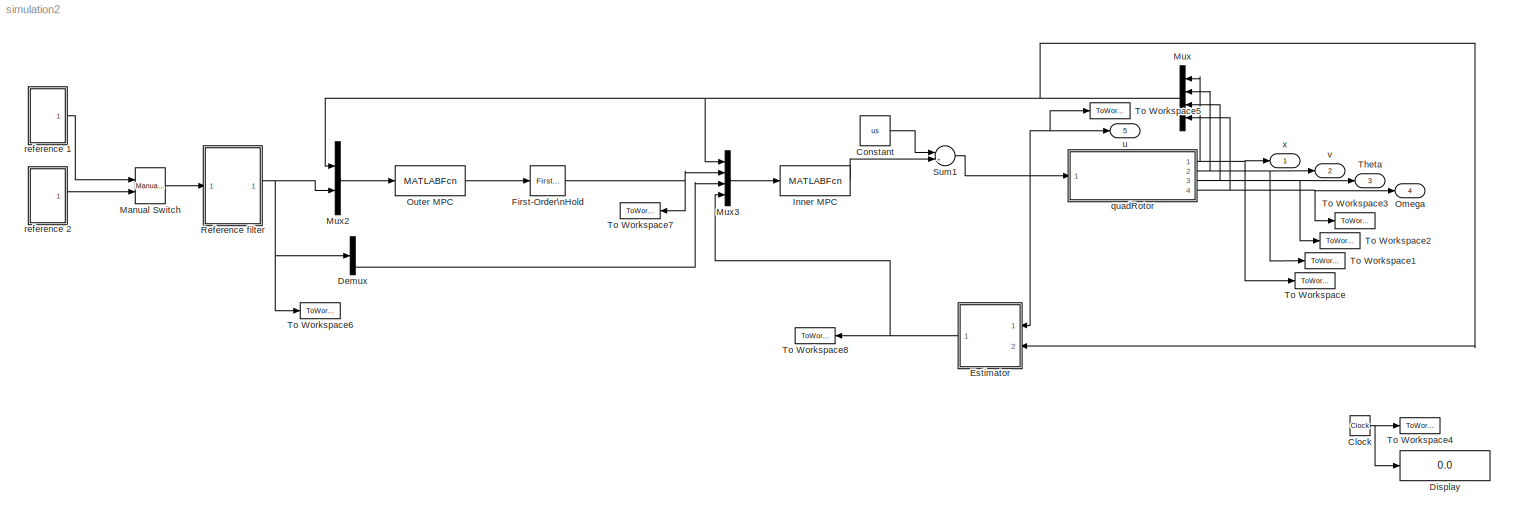
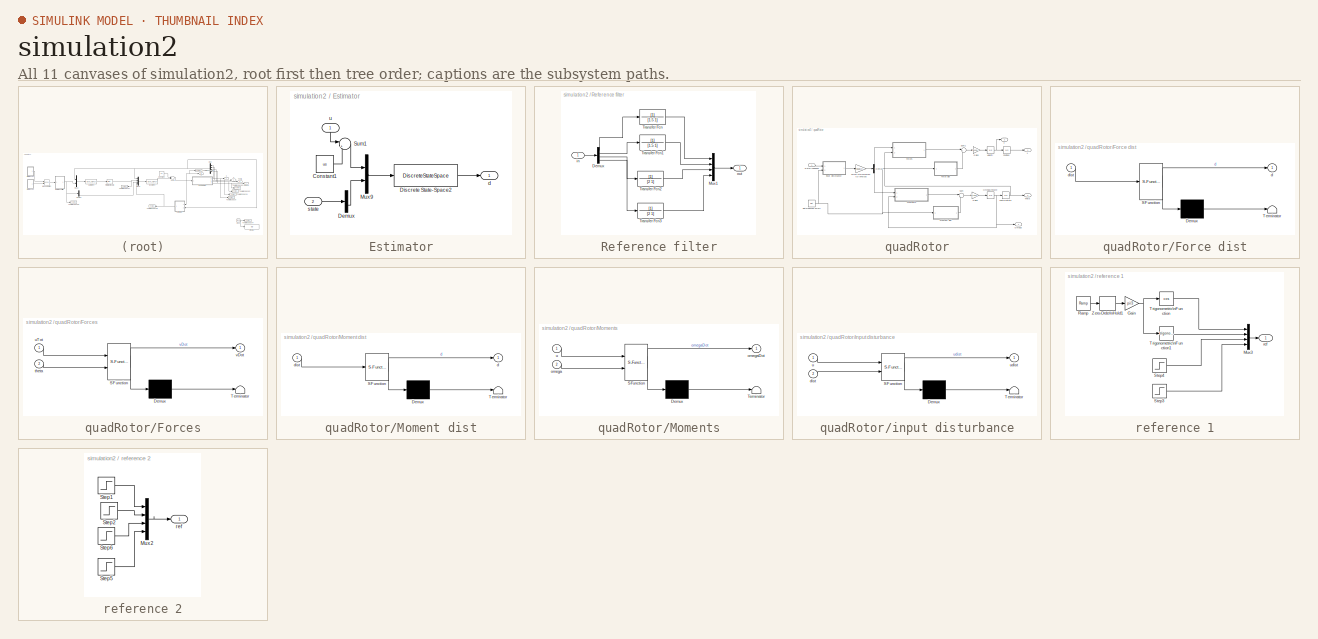
[diagram: thumbnail index - all 11 canvases of the model, root first then tree order]
MODEL simulation2
KIND model
CONFIG StopFcn = plotQuadSimResult
BLOCK [Clock] Clock
  SID = 30
BLOCK [Constant] Constant
  SID = 180
  Value = us
BLOCK [Demux] Demux
  DisplayOption = bar
  Ports = [1, 4]
  SID = 83
BLOCK [Display] Display
  Decimation = 1
  Lockdown = off
  Ports = [1]
  SID = 68
BLOCK [SubSystem] Estimator
  FunctionWithSeparateData = off
  MaskHideContents = off
  MinAlgLoopOccurrences = off
  Opaque = off
  Ports = [2, 1]
  PropExecContextOutsideSubsystem = off
  RTWSystemCode = Auto
  RequestExecContextInheritance = off
  SID = 129
BLOCK [Constant] Estimator/Constant1
  SID = 122
  Value = us
BLOCK [Demux] Estimator/Demux
  DisplayOption = bar
  Outputs = [5 7]
  Ports = [1, 2]
  SID = 182
BLOCK [DiscreteStateSpace] Estimator/Discrete State-Space2
  A = filter.Af
  B = filter.Bf
  C = [zeros(7,7) eye(7)]
  D = zeros(7,11)
  SID = 119
  SampleTime = sys.Ts
BLOCK [Mux] Estimator/Mux9
  DisplayOption = bar
  Inputs = [4 7]
  Ports = [2, 1]
  SID = 120
BLOCK [Sum] Estimator/Sum1
  IconShape = round
  InputSameDT = off
  Inputs = |+-
  OutDataTypeStr = Inherit: Inherit via internal rule
  Ports = [2, 1]
  SID = 121
  SaturateOnIntegerOverflow = off
BLOCK [Outport] Estimator/d
  IconDisplay = Port number
  SID = 131
BLOCK [Inport] Estimator/state
  IconDisplay = Port number
  Port = 2
  SID = 132
BLOCK [Inport] Estimator/u
  IconDisplay = Port number
  SID = 130
BLOCK [Reference] First-Order\nHold  REF=simulink/Discrete/First-Order\nHold
  DisableCoverage = on
  Ports = [1, 1]
  SID = 103
  SourceBlock = simulink/Discrete/First-Order\nHold
  SourceType = First-Order Hold
  Ts = quad.Ts2
BLOCK [MATLABFcn] Inner MPC
  MATLABFcn = innerController{[u(6:end)]}
  OutputDimensions = 4
  OutputSignalType = real
  Ports = [1, 1]
  SID = 82
  SampleTime = sys.Ts
BLOCK [Reference] Manual Switch  REF=simulink/Signal\nRouting/Manual Switch
  Ports = [2, 1]
  SID = 223
  SourceBlock = simulink/Signal\nRouting/Manual Switch
  SourceType = Manual Switch
  action = 0
  sw = 1
  varsize = off
BLOCK [Mux] Mux
  DisplayOption = bar
  Ports = [4, 1]
  SID = 60
BLOCK [Mux] Mux2
  DisplayOption = bar
  Inputs = [12 4]
  Ports = [2, 1]
  SID = 67
BLOCK [Mux] Mux3
  DisplayOption = bar
  Inputs = [12 3 1 7]
  Ports = [4, 1]
  SID = 85
BLOCK [Outport] Omega
  IconDisplay = Port number
  Port = 4
  SID = 57
BLOCK [MATLABFcn] Outer MPC
  MATLABFcn = outerController{[u([1;4;2;5;3;13;14;15])]}
  OutputDimensions = 3
  OutputSignalType = real
  Ports = [1, 1]
  SID = 166
  SampleTime = quad.Ts2
BLOCK [SubSystem] Reference filter
  FunctionWithSeparateData = off
  MaskHideContents = off
  MinAlgLoopOccurrences = off
  Opaque = off
  Ports = [1, 1]
  PropExecContextOutsideSubsystem = off
  RTWSystemCode = Auto
  RequestExecContextInheritance = off
  SID = 145
BLOCK [Demux] Reference filter/Demux
  DisplayOption = bar
  Ports = [1, 4]
  SID = 224
BLOCK [Mux] Reference filter/Mux1
  DisplayOption = bar
  Ports = [4, 1]
  SID = 154
BLOCK [TransferFcn] Reference filter/Transfer Fcn
  Denominator = [1.5 1]
  SID = 141
BLOCK [TransferFcn] Reference filter/Transfer Fcn1
  Denominator = [1.5 1]
  SID = 142
BLOCK [TransferFcn] Reference filter/Transfer Fcn2
  Denominator = [2 1]
  SID = 143
BLOCK [TransferFcn] Reference filter/Transfer Fcn3
  Denominator = [2 1]
  SID = 144
BLOCK [Inport] Reference filter/in
  IconDisplay = Port number
  SID = 225
BLOCK [Outport] Reference filter/out
  IconDisplay = Port number
  SID = 155
BLOCK [Sum] Sum1
  IconShape = round
  InputSameDT = off
  Inputs = |++
  OutDataTypeStr = Inherit: Inherit via internal rule
  Ports = [2, 1]
  SID = 181
  SaturateOnIntegerOverflow = off
BLOCK [Outport] Theta
  IconDisplay = Port number
  Port = 3
  SID = 56
BLOCK [ToWorkspace] To Workspace
  MaxDataPoints = inf
  Ports = [1]
  SID = 32
  SampleTime = 0.1
  SaveFormat = Array
  VariableName = x
BLOCK [ToWorkspace] To Workspace1
  MaxDataPoints = inf
  Ports = [1]
  SID = 33
  SampleTime = 0.1
  SaveFormat = Array
  VariableName = v
BLOCK [ToWorkspace] To Workspace2
  MaxDataPoints = inf
  Ports = [1]
  SID = 34
  SampleTime = 0.1
  SaveFormat = Array
  VariableName = theta
BLOCK [ToWorkspace] To Workspace3
  MaxDataPoints = inf
  Ports = [1]
  SID = 35
  SampleTime = 0.1
  SaveFormat = Array
  VariableName = omega
BLOCK [ToWorkspace] To Workspace4
  MaxDataPoints = inf
  Ports = [1]
  SID = 36
  SampleTime = 0.1
  SaveFormat = Array
  VariableName = t
BLOCK [ToWorkspace] To Workspace5
  MaxDataPoints = inf
  Ports = [1]
  SID = 37
  SampleTime = 0.1
  SaveFormat = Array
  VariableName = u
BLOCK [ToWorkspace] To Workspace6
  MaxDataPoints = inf
  Ports = [1]
  SID = 79
  SampleTime = 0.1
  SaveFormat = Array
  VariableName = ref
BLOCK [ToWorkspace] To Workspace7
  MaxDataPoints = inf
  Ports = [1]
  SID = 88
  SampleTime = 0.1
  SaveFormat = Array
  VariableName = u1
BLOCK [ToWorkspace] To Workspace8
  MaxDataPoints = inf
  Ports = [1]
  SID = 96
  SampleTime = 0.1
  SaveFormat = Array
  VariableName = d1
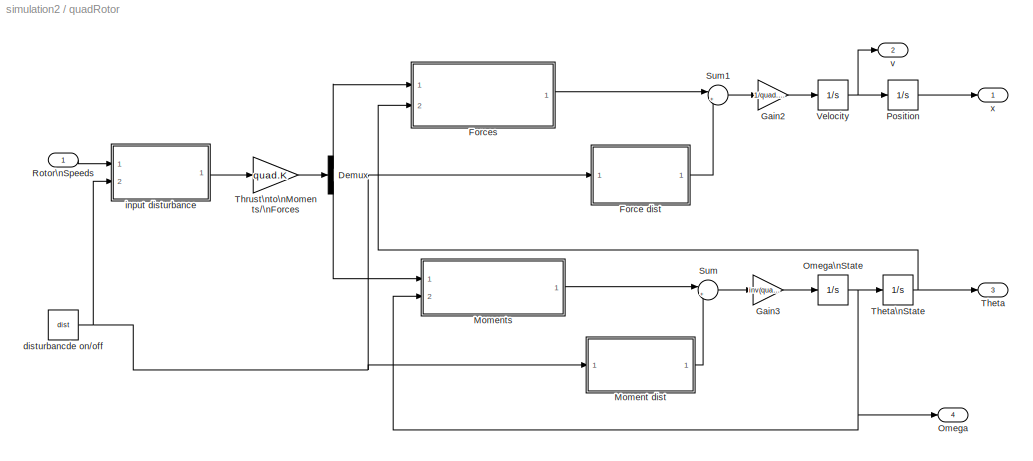
BLOCK [SubSystem] quadRotor
  FunctionWithSeparateData = off
  MaskEnableString = on
  MaskHideContents = off
  MaskIconFrame = on
  MaskIconOpaque = on
  MaskIconRotate = none
  MaskIconUnits = autoscale
  MaskPortRotate = default
  MaskPromptString = disturbance on/off
  MaskStyleString = checkbox
  MaskToolTipString = on
  MaskTunableValueString = on
  MaskValueString = on
  MaskVariables = dist=@1;
  MaskVisibilityString = on
  MinAlgLoopOccurrences = off
  Opaque = off
  Ports = [1, 4]
  PropExecContextOutsideSubsystem = off
  RTWSystemCode = Auto
  RequestExecContextInheritance = off
  SID = 38
BLOCK [Demux] quadRotor/Demux
  DisplayOption = bar
  Outputs = [1 3]
  Ports = [1, 2]
  SID = 40
BLOCK [SubSystem] quadRotor/Force dist
  ErrorFcn = Stateflow.Translate.translate
  FunctionWithSeparateData = off
  MaskDescription = Embedded MATLAB block
  MaskDisplay = bgColor = Simulink.Root.ColorString2Rgb(get_param(gcbh, 'BackgroundColor')); image(imread('private/eml_membrane_16.png','png','BackgroundColor',bgColor(1:3)),'center'); disp([10 10 'forceDist']);
  MaskHideContents = off
  MaskIconFrame = on
  MaskIconOpaque = off
  MaskIconRotate = none
  MaskIconUnits = normalized
  MaskPortRotate = default
  MaskSelfModifiable = on
  MaskType = Stateflow
  MinAlgLoopOccurrences = off
  Opaque = off
  PermitHierarchicalResolution = ExplicitOnly
  Ports = [1, 1]
  PropExecContextOutsideSubsystem = off
  RTWSystemCode = Auto
  RequestExecContextInheritance = off
  SFBlockType = MATLAB Function
  SID = 204
  TreatAsAtomicUnit = on
BLOCK [Demux] quadRotor/Force dist/ Demux 
  Outputs = 1
  Ports = [1, 1]
  SID = 204::26
BLOCK [S-Function] quadRotor/Force dist/ SFunction 
  EnableBusSupport = on
  FunctionName = sf_sfun
  PortCounts = [1 2]
  Ports = [1, 2]
  SID = 204::25
  Tag = Stateflow S-Function simulation2 4
BLOCK [Terminator] quadRotor/Force dist/ Terminator 
  SID = 204::28
BLOCK [Outport] quadRotor/Force dist/d
  IconDisplay = Port number
  SID = 204::5
BLOCK [Inport] quadRotor/Force dist/dist
  IconDisplay = Port number
  SID = 204::29
BLOCK [SubSystem] quadRotor/Forces
  ErrorFcn = Stateflow.Translate.translate
  FunctionWithSeparateData = off
  MaskDescription = Embedded MATLAB block
  MaskDisplay = bgColor = Simulink.Root.ColorString2Rgb(get_param(gcbh, 'BackgroundColor')); image(imread('private/eml_membrane_16.png','png','BackgroundColor',bgColor(1:3)),'center'); disp([10 10 'forces']);
  MaskHideContents = off
  MaskIconFrame = on
  MaskIconOpaque = off
  MaskIconRotate = none
  MaskIconUnits = normalized
  MaskPortRotate = default
  MaskSelfModifiable = on
  MaskType = Stateflow
  MinAlgLoopOccurrences = off
  Opaque = off
  PermitHierarchicalResolution = ExplicitOnly
  Ports = [2, 1]
  PropExecContextOutsideSubsystem = off
  RTWSystemCode = Auto
  RequestExecContextInheritance = off
  SFBlockType = MATLAB Function
  SID = 41
  TreatAsAtomicUnit = on
BLOCK [Demux] quadRotor/Forces/ Demux 
  Outputs = 1
  Ports = [1, 1]
  SID = 41::26
BLOCK [S-Function] quadRotor/Forces/ SFunction 
  EnableBusSupport = on
  FunctionName = sf_sfun
  Parameters = quad
  PortCounts = [2 2]
  Ports = [2, 2]
  SID = 41::25
  Tag = Stateflow S-Function simulation2 1
BLOCK [Terminator] quadRotor/Forces/ Terminator 
  SID = 41::28
BLOCK [Inport] quadRotor/Forces/theta
  IconDisplay = Port number
  Port = 2
  SID = 41::18
BLOCK [Inport] quadRotor/Forces/uTot
  IconDisplay = Port number
  SID = 41::1
BLOCK [Outport] quadRotor/Forces/vDot
  IconDisplay = Port number
  SID = 41::5
BLOCK [Gain] quadRotor/Gain2
  Gain = 1/quad.mass
  OutDataTypeStr = Inherit: Inherit via internal rule
  ParamDataTypeStr = Inherit: Inherit via internal rule
  SID = 42
  SaturateOnIntegerOverflow = off
BLOCK [Gain] quadRotor/Gain3
  Gain = inv(quad.I)
  Multiplication = Matrix(K*u)
  OutDataTypeStr = Inherit: Inherit via internal rule
  ParamDataTypeStr = Inherit: Inherit via internal rule
  SID = 43
  SaturateOnIntegerOverflow = off
BLOCK [SubSystem] quadRotor/Moment dist
  ErrorFcn = Stateflow.Translate.translate
  FunctionWithSeparateData = off
  MaskDescription = Embedded MATLAB block
  MaskDisplay = bgColor = Simulink.Root.ColorString2Rgb(get_param(gcbh, 'BackgroundColor')); image(imread('private/eml_membrane_16.png','png','BackgroundColor',bgColor(1:3)),'center'); disp([10 10 'momentDist']);
  MaskHideContents = off
  MaskIconFrame = on
  MaskIconOpaque = off
  MaskIconRotate = none
  MaskIconUnits = normalized
  MaskPortRotate = default
  MaskSelfModifiable = on
  MaskType = Stateflow
  MinAlgLoopOccurrences = off
  Opaque = off
  PermitHierarchicalResolution = ExplicitOnly
  Ports = [1, 1]
  PropExecContextOutsideSubsystem = off
  RTWSystemCode = Auto
  RequestExecContextInheritance = off
  SFBlockType = MATLAB Function
  SID = 205
  SystemSampleTime = 0.05
  TreatAsAtomicUnit = on
BLOCK [Demux] quadRotor/Moment dist/ Demux 
  Outputs = 1
  Ports = [1, 1]
  SID = 205::26
BLOCK [S-Function] quadRotor/Moment dist/ SFunction 
  EnableBusSupport = on
  FunctionName = sf_sfun
  PortCounts = [1 2]
  Ports = [1, 2]
  SID = 205::25
  Tag = Stateflow S-Function simulation2 5
BLOCK [Terminator] quadRotor/Moment dist/ Terminator 
  SID = 205::28
BLOCK [Outport] quadRotor/Moment dist/d
  IconDisplay = Port number
  SID = 205::5
BLOCK [Inport] quadRotor/Moment dist/dist
  IconDisplay = Port number
  SID = 205::29
BLOCK [SubSystem] quadRotor/Moments
  ErrorFcn = Stateflow.Translate.translate
  FunctionWithSeparateData = off
  MaskDescription = Embedded MATLAB block
  MaskDisplay = bgColor = Simulink.Root.ColorString2Rgb(get_param(gcbh, 'BackgroundColor')); image(imread('private/eml_membrane_16.png','png','BackgroundColor',bgColor(1:3)),'center'); disp([10 10 'moments']);
  MaskHideContents = off
  MaskIconFrame = on
  MaskIconOpaque = off
  MaskIconRotate = none
  MaskIconUnits = normalized
  MaskPortRotate = default
  MaskSelfModifiable = on
  MaskType = Stateflow
  MinAlgLoopOccurrences = off
  Opaque = off
  PermitHierarchicalResolution = ExplicitOnly
  Ports = [2, 1]
  PropExecContextOutsideSubsystem = off
  RTWSystemCode = Auto
  RequestExecContextInheritance = off
  SFBlockType = MATLAB Function
  SID = 44
  TreatAsAtomicUnit = on
BLOCK [Demux] quadRotor/Moments/ Demux 
  Outputs = 1
  Ports = [1, 1]
  SID = 44::26
BLOCK [S-Function] quadRotor/Moments/ SFunction 
  EnableBusSupport = on
  FunctionName = sf_sfun
  Parameters = quad
  PortCounts = [2 2]
  Ports = [2, 2]
  SID = 44::25
  Tag = Stateflow S-Function simulation2 2
BLOCK [Terminator] quadRotor/Moments/ Terminator 
  SID = 44::28
BLOCK [Inport] quadRotor/Moments/omega
  IconDisplay = Port number
  Port = 2
  SID = 44::18
BLOCK [Outport] quadRotor/Moments/omegaDot
  IconDisplay = Port number
  SID = 44::5
BLOCK [Inport] quadRotor/Moments/u
  IconDisplay = Port number
  SID = 44::1
BLOCK [Outport] quadRotor/Omega
  IconDisplay = Port number
  Port = 4
  SID = 53
BLOCK [Integrator] quadRotor/Omega\nState
  InitialCondition = [0;0;0]
  Ports = [1, 1]
  SID = 45
BLOCK [Integrator] quadRotor/Position
  InitialCondition = [0;0;0]
  Ports = [1, 1]
  SID = 46
BLOCK [Inport] quadRotor/Rotor\nSpeeds
  IconDisplay = Port number
  SID = 39
BLOCK [Sum] quadRotor/Sum
  IconShape = round
  InputSameDT = off
  Inputs = |++
  OutDataTypeStr = Inherit: Inherit via internal rule
  Ports = [2, 1]
  SID = 206
  SaturateOnIntegerOverflow = off
BLOCK [Sum] quadRotor/Sum1
  IconShape = round
  InputSameDT = off
  Inputs = |++
  OutDataTypeStr = Inherit: Inherit via internal rule
  Ports = [2, 1]
  SID = 207
  SaturateOnIntegerOverflow = off
BLOCK [Outport] quadRotor/Theta
  IconDisplay = Port number
  Port = 3
  SID = 52
BLOCK [Integrator] quadRotor/Theta\nState
  InitialCondition = [0;0;0]
  Ports = [1, 1]
  SID = 47
BLOCK [Gain] quadRotor/Thrust\nto\nMoments//\nForces
  Gain = quad.K
  Multiplication = Matrix(K*u)
  OutDataTypeStr = Inherit: Inherit via internal rule
  ParamDataTypeStr = Inherit: Inherit via internal rule
  SID = 48
  SaturateOnIntegerOverflow = off
BLOCK [Integrator] quadRotor/Velocity
  InitialCondition = [0;0;0]
  Ports = [1, 1]
  SID = 49
BLOCK [Constant] quadRotor/disturbancde on//off
  SID = 202
  Value = dist
BLOCK [SubSystem] quadRotor/input disturbance
  ErrorFcn = Stateflow.Translate.translate
  FunctionWithSeparateData = off
  MaskDescription = Embedded MATLAB block
  MaskDisplay = bgColor = Simulink.Root.ColorString2Rgb(get_param(gcbh, 'BackgroundColor')); image(imread('private/eml_membrane_16.png','png','BackgroundColor',bgColor(1:3)),'center'); disp([10 10 'inputDist']);
  MaskHideContents = off
  MaskIconFrame = on
  MaskIconOpaque = off
  MaskIconRotate = none
  MaskIconUnits = normalized
  MaskPortRotate = default
  MaskSelfModifiable = on
  MaskType = Stateflow
  MinAlgLoopOccurrences = off
  Opaque = off
  PermitHierarchicalResolution = ExplicitOnly
  Ports = [2, 1]
  PropExecContextOutsideSubsystem = off
  RTWSystemCode = Auto
  RequestExecContextInheritance = off
  SFBlockType = MATLAB Function
  SID = 183
  TreatAsAtomicUnit = on
BLOCK [Demux] quadRotor/input disturbance/ Demux 
  Outputs = 1
  Ports = [1, 1]
  SID = 183::26
BLOCK [S-Function] quadRotor/input disturbance/ SFunction 
  EnableBusSupport = on
  FunctionName = sf_sfun
  PortCounts = [2 2]
  Ports = [2, 2]
  SID = 183::25
  Tag = Stateflow S-Function simulation2 3
BLOCK [Terminator] quadRotor/input disturbance/ Terminator 
  SID = 183::28
BLOCK [Inport] quadRotor/input disturbance/dist
  IconDisplay = Port number
  Port = 2
  SID = 183::29
BLOCK [Inport] quadRotor/input disturbance/u
  IconDisplay = Port number
  SID = 183::1
BLOCK [Outport] quadRotor/input disturbance/udist
  IconDisplay = Port number
  SID = 183::5
BLOCK [Outport] quadRotor/v
  IconDisplay = Port number
  Port = 2
  SID = 51
BLOCK [Outport] quadRotor/x
  IconDisplay = Port number
  SID = 50
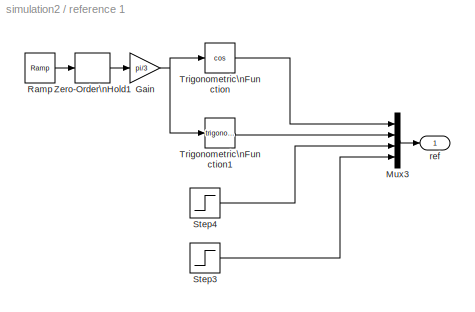
BLOCK [SubSystem] reference 1
  FunctionWithSeparateData = off
  MaskHideContents = off
  MinAlgLoopOccurrences = off
  Opaque = off
  Ports = [0, 1]
  PropExecContextOutsideSubsystem = off
  RTWSystemCode = Auto
  RequestExecContextInheritance = off
  SID = 213
BLOCK [Gain] reference 1/Gain
  Gain = pi/3
  OutDataTypeStr = Inherit: Inherit via internal rule
  ParamDataTypeStr = Inherit: Inherit via internal rule
  SID = 158
  SaturateOnIntegerOverflow = off
BLOCK [Mux] reference 1/Mux3
  DisplayOption = bar
  Ports = [4, 1]
  SID = 226
BLOCK [Reference] reference 1/Ramp  REF=simulink/Sources/Ramp
  Ports = [0, 1]
  SID = 157
  SourceBlock = simulink/Sources/Ramp
  SourceType = Ramp
  VectorParams1D = on
  X0 = 0
  slope = 1/6
  start = 0
BLOCK [Step] reference 1/Step3
  After = pi
  SID = 211
  SampleTime = 0
  Time = 0
BLOCK [Step] reference 1/Step4
  After = 2
  SID = 212
  SampleTime = 0
  Time = 4
BLOCK [Trigonometry] reference 1/Trigonometric\nFunction
  Operator = cos
  Ports = [1, 1]
  SID = 163
BLOCK [Trigonometry] reference 1/Trigonometric\nFunction1
  Ports = [1, 1]
  SID = 164
BLOCK [ZeroOrderHold] reference 1/Zero-Order\nHold1
  SID = 159
  SampleTime = 6
BLOCK [Outport] reference 1/ref
  IconDisplay = Port number
  SID = 227
BLOCK [SubSystem] reference 2
  FunctionWithSeparateData = off
  MaskHideContents = off
  MinAlgLoopOccurrences = off
  Opaque = off
  Ports = [0, 1]
  PropExecContextOutsideSubsystem = off
  RTWSystemCode = Auto
  RequestExecContextInheritance = off
  SID = 218
BLOCK [Mux] reference 2/Mux2
  DisplayOption = bar
  Ports = [4, 1]
  SID = 228
BLOCK [Step] reference 2/Step1
  After = 3
  SID = 140
  SampleTime = 0
  Time = 4
BLOCK [Step] reference 2/Step2
  After = 2.2
  SID = 203
  SampleTime = 0
  Time = 4
BLOCK [Step] reference 2/Step5
  After = pi
  SID = 91
  SampleTime = 0
  Time = 0
BLOCK [Step] reference 2/Step6
  After = 2
  SID = 128
  SampleTime = 0
  Time = 4
BLOCK [Outport] reference 2/ref
  IconDisplay = Port number
  SID = 222
BLOCK [Outport] u
  IconDisplay = Port number
  Port = 5
  SID = 58
BLOCK [Outport] v
  IconDisplay = Port number
  Port = 2
  SID = 55
BLOCK [Outport] x
  IconDisplay = Port number
  SID = 54
NET Clock:1 -> Display:1, To Workspace4:1
LINE Constant:1 -> Sum1:1
LINE Demux:4 -> Mux3:3
LINE Estimator/Constant1:1 -> Estimator/Sum1:2
LINE Estimator/Demux:2 -> Estimator/Mux9:2
LINE Estimator/Discrete State-Space2:1 -> Estimator/d:1
LINE Estimator/Mux9:1 -> Estimator/Discrete State-Space2:1
LINE Estimator/Sum1:1 -> Estimator/Mux9:1
LINE Estimator/state:1 -> Estimator/Demux:1
LINE Estimator/u:1 -> Estimator/Sum1:1
NET Estimator:1 -> Mux3:4, To Workspace8:1
NET First-Order\nHold:1 -> Mux3:2, To Workspace7:1
LINE Inner MPC:1 -> Sum1:2
LINE Manual Switch:1 -> Reference filter:1
LINE Mux2:1 -> Outer MPC:1
LINE Mux3:1 -> Inner MPC:1
NET Mux:1 -> Estimator:2, Mux2:1, Mux3:1
LINE Outer MPC:1 -> First-Order\nHold:1
LINE Reference filter/Demux:1 -> Reference filter/Transfer Fcn:1
LINE Reference filter/Demux:2 -> Reference filter/Transfer Fcn1:1
LINE Reference filter/Demux:3 -> Reference filter/Transfer Fcn2:1
LINE Reference filter/Demux:4 -> Reference filter/Transfer Fcn3:1
LINE Reference filter/Mux1:1 -> Reference filter/out:1
LINE Reference filter/Transfer Fcn1:1 -> Reference filter/Mux1:2
LINE Reference filter/Transfer Fcn2:1 -> Reference filter/Mux1:3
LINE Reference filter/Transfer Fcn3:1 -> Reference filter/Mux1:4
LINE Reference filter/Transfer Fcn:1 -> Reference filter/Mux1:1
LINE Reference filter/in:1 -> Reference filter/Demux:1
NET Reference filter:1 -> Demux:1, Mux2:2, To Workspace6:1
NET Sum1:1 -> Estimator:1, To Workspace5:1, quadRotor:1, u:1
LINE quadRotor/Demux:1 -> quadRotor/Forces:1
LINE quadRotor/Demux:2 -> quadRotor/Moments:1
LINE quadRotor/Force dist/ Demux :1 -> quadRotor/Force dist/ Terminator :1
LINE quadRotor/Force dist/ SFunction :1 -> quadRotor/Force dist/ Demux :1
LINE quadRotor/Force dist/ SFunction :2 -> quadRotor/Force dist/d:1
LINE quadRotor/Force dist/dist:1 -> quadRotor/Force dist/ SFunction :1
LINE quadRotor/Force dist:1 -> quadRotor/Sum1:2
LINE quadRotor/Forces/ Demux :1 -> quadRotor/Forces/ Terminator :1
LINE quadRotor/Forces/ SFunction :1 -> quadRotor/Forces/ Demux :1
LINE quadRotor/Forces/ SFunction :2 -> quadRotor/Forces/vDot:1
LINE quadRotor/Forces/theta:1 -> quadRotor/Forces/ SFunction :2
LINE quadRotor/Forces/uTot:1 -> quadRotor/Forces/ SFunction :1
LINE quadRotor/Forces:1 -> quadRotor/Sum1:1
LINE quadRotor/Gain2:1 -> quadRotor/Velocity:1
LINE quadRotor/Gain3:1 -> quadRotor/Omega\nState:1
LINE quadRotor/Moment dist/ Demux :1 -> quadRotor/Moment dist/ Terminator :1
LINE quadRotor/Moment dist/ SFunction :1 -> quadRotor/Moment dist/ Demux :1
LINE quadRotor/Moment dist/ SFunction :2 -> quadRotor/Moment dist/d:1
LINE quadRotor/Moment dist/dist:1 -> quadRotor/Moment dist/ SFunction :1
LINE quadRotor/Moment dist:1 -> quadRotor/Sum:2
LINE quadRotor/Moments/ Demux :1 -> quadRotor/Moments/ Terminator :1
LINE quadRotor/Moments/ SFunction :1 -> quadRotor/Moments/ Demux :1
LINE quadRotor/Moments/ SFunction :2 -> quadRotor/Moments/omegaDot:1
LINE quadRotor/Moments/omega:1 -> quadRotor/Moments/ SFunction :2
LINE quadRotor/Moments/u:1 -> quadRotor/Moments/ SFunction :1
LINE quadRotor/Moments:1 -> quadRotor/Sum:1
NET quadRotor/Omega\nState:1 -> quadRotor/Moments:2, quadRotor/Omega:1, quadRotor/Theta\nState:1
LINE quadRotor/Position:1 -> quadRotor/x:1
LINE quadRotor/Rotor\nSpeeds:1 -> quadRotor/input disturbance:1
LINE quadRotor/Sum1:1 -> quadRotor/Gain2:1
LINE quadRotor/Sum:1 -> quadRotor/Gain3:1
NET quadRotor/Theta\nState:1 -> quadRotor/Forces:2, quadRotor/Theta:1
LINE quadRotor/Thrust\nto\nMoments//\nForces:1 -> quadRotor/Demux:1
NET quadRotor/Velocity:1 -> quadRotor/Position:1, quadRotor/v:1
NET quadRotor/disturbancde on//off:1 -> quadRotor/Force dist:1, quadRotor/Moment dist:1, quadRotor/input disturbance:2
LINE quadRotor/input disturbance/ Demux :1 -> quadRotor/input disturbance/ Terminator :1
LINE quadRotor/input disturbance/ SFunction :1 -> quadRotor/input disturbance/ Demux :1
LINE quadRotor/input disturbance/ SFunction :2 -> quadRotor/input disturbance/udist:1
LINE quadRotor/input disturbance/dist:1 -> quadRotor/input disturbance/ SFunction :2
LINE quadRotor/input disturbance/u:1 -> quadRotor/input disturbance/ SFunction :1
LINE quadRotor/input disturbance:1 -> quadRotor/Thrust\nto\nMoments//\nForces:1
NET quadRotor:1 -> Mux:1, To Workspace:1, x:1
NET quadRotor:2 -> Mux:2, To Workspace1:1, v:1
NET quadRotor:3 -> Mux:3, Theta:1, To Workspace2:1
NET quadRotor:4 -> Mux:4, Omega:1, To Workspace3:1
NET reference 1/Gain:1 -> reference 1/Trigonometric\nFunction1:1, reference 1/Trigonometric\nFunction:1
LINE reference 1/Mux3:1 -> reference 1/ref:1
LINE reference 1/Ramp:1 -> reference 1/Zero-Order\nHold1:1
LINE reference 1/Step3:1 -> reference 1/Mux3:4
LINE reference 1/Step4:1 -> reference 1/Mux3:3
LINE reference 1/Trigonometric\nFunction1:1 -> reference 1/Mux3:2
LINE reference 1/Trigonometric\nFunction:1 -> reference 1/Mux3:1
LINE reference 1/Zero-Order\nHold1:1 -> reference 1/Gain:1
LINE reference 1:1 -> Manual Switch:1
LINE reference 2/Mux2:1 -> reference 2/ref:1
LINE reference 2/Step1:1 -> reference 2/Mux2:1
LINE reference 2/Step2:1 -> reference 2/Mux2:2
LINE reference 2/Step5:1 -> reference 2/Mux2:4
LINE reference 2/Step6:1 -> reference 2/Mux2:3
LINE reference 2:1 -> Manual Switch:2
note: NET lines group one-source signal fan-out (src -> all destinations, sorted); 1:1 wires keep LINE
CHART quadRotor/Forces states=1 transitions=1
  STATE_LABEL 'eML_blk_kernel()'
CHART quadRotor/Moments states=1 transitions=1
  STATE_LABEL 'eML_blk_kernel()'
CHART quadRotor/input disturbance states=1 transitions=1
  STATE_LABEL 'eML_blk_kernel()'
CHART quadRotor/Force dist states=1 transitions=1
  STATE_LABEL 'eML_blk_kernel()'
CHART quadRotor/Moment dist states=1 transitions=1
  STATE_LABEL 'eML_blk_kernel()'
